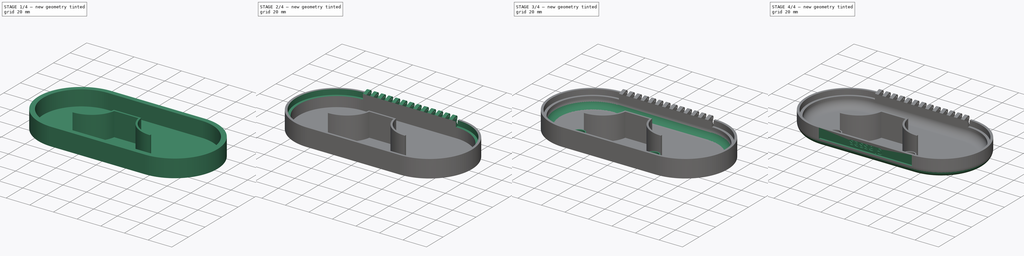
[diagram: build sequence overview — one tinted view per stage of 4, left to right]
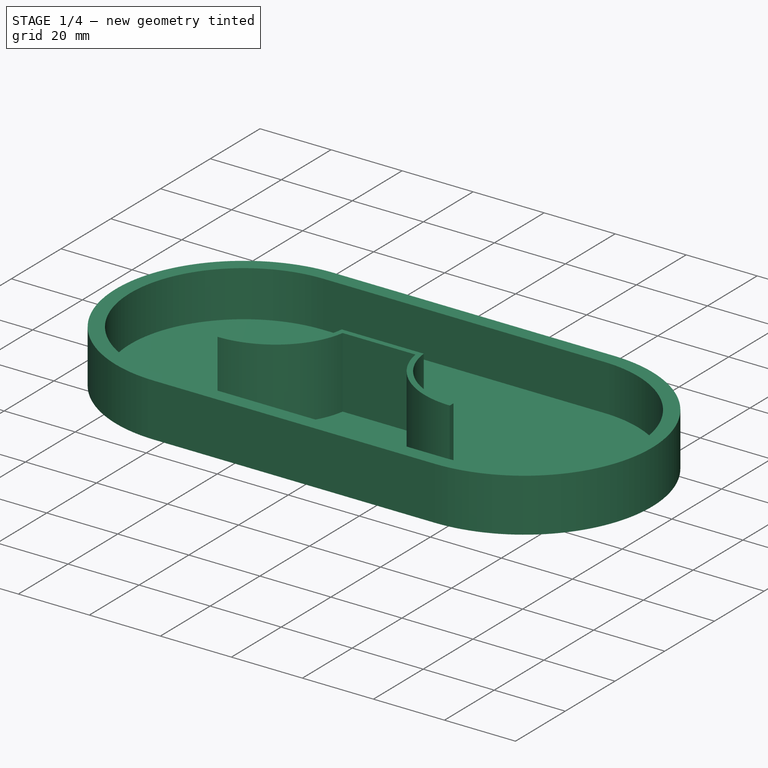
[diagram: stage 1 of 4 — iso view after this stage's code; geometry added in this stage tinted green]
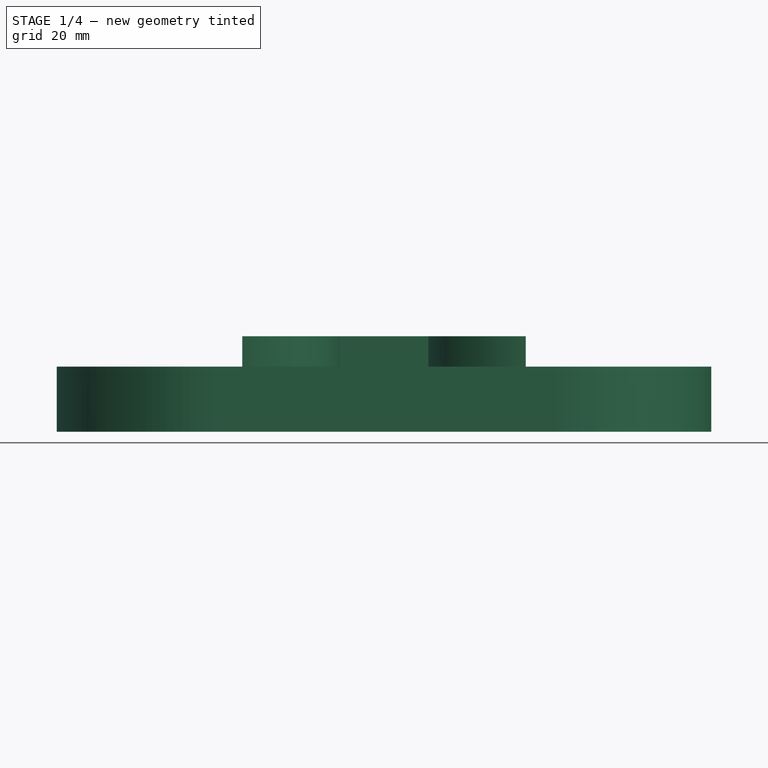
[diagram: stage 1 of 4 — front view after this stage's code; geometry added in this stage tinted green]
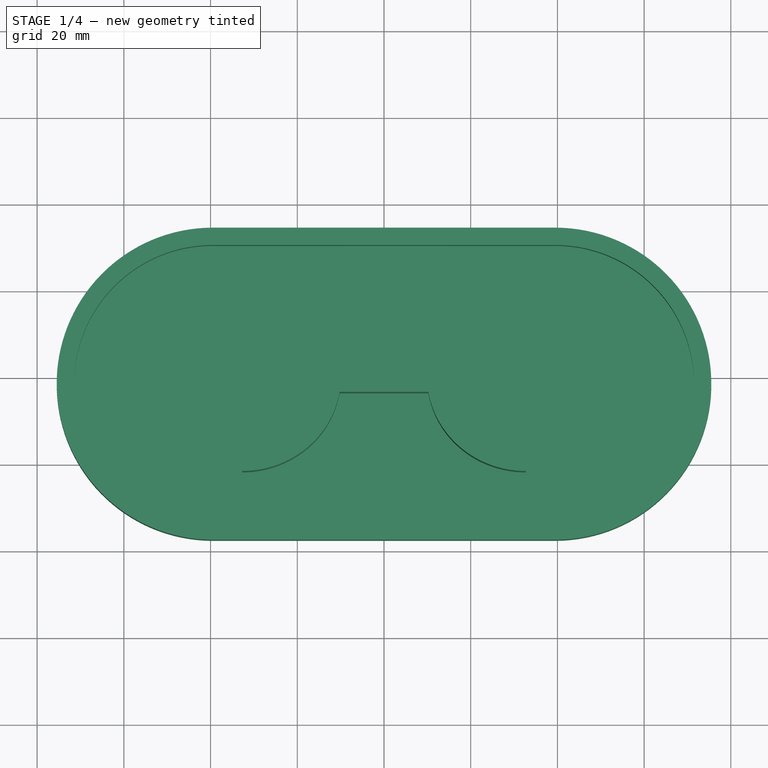
[diagram: stage 1 of 4 — top view after this stage's code; geometry added in this stage tinted green]
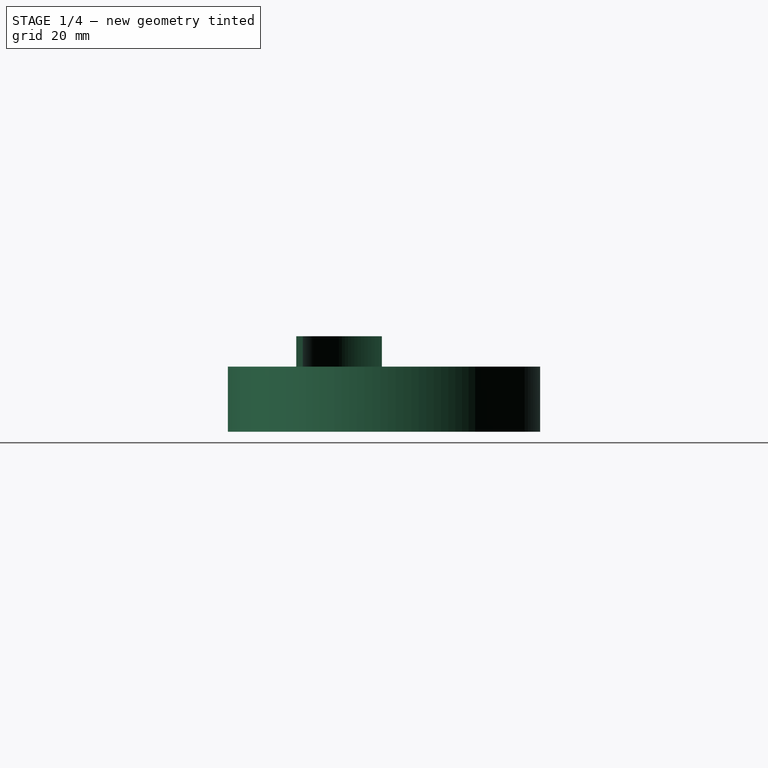
[diagram: stage 1 of 4 — right view after this stage's code; geometry added in this stage tinted green]
FCSTD DOCUMENT  (FreeCAD 1.1R39673 (Git))
Label: case_top
License: All rights reserved
LicenseURL: http://en.wikipedia.org/wiki/All_rights_reserved
objects: Sketcher::SketchObject×12, PartDesign::Pad×4, PartDesign::Pocket×4, PartDesign::AdditivePipe×2, PartDesign::SubtractivePipe×2, PartDesign::Plane×1, PartDesign::Mirrored×1, App::Point×1, Part::Part2DObjectPython×1, PartDesign::Body×1
note: 65 computed .brp shape members not serialized (recipe doc carries the construction recipe); baked Part::Feature solids carry a one-line shape summary decoded from their .brp

FEATURE [Sketcher::SketchObject] Sketch  label="Frame back face"
  ArcFitTolerance = 1e-06
  AttachmentSupport = -> [XY_Plane]
  ExternalTypes = [0]
  FullyConstrained = true
  MakeInternals = false
  MapMode = 5
  sketch-geometry (24):
    g0: Ellipse CenterX=-32.7 CenterY=0 CenterZ=0 NormalX=0 NormalY=0 NormalZ=1 MajorRadius=20 MinorRadius=19 AngleXU=0
    g1: LineSegment [constr] StartX=-12.7 StartY=0 StartZ=0 EndX=-52.7 EndY=0 EndZ=0
    g2: LineSegment [constr] StartX=-32.7 StartY=19 StartZ=0 EndX=-32.7 EndY=-19 EndZ=0
    g3: GeomPoint [constr] X=-26.455 Y=0 Z=0
    g4: GeomPoint [constr] X=-38.945 Y=0 Z=0
    g5: Ellipse CenterX=32.7 CenterY=0 CenterZ=0 NormalX=0 NormalY=0 NormalZ=1 MajorRadius=20 MinorRadius=19 AngleXU=0
    g6: LineSegment [constr] StartX=52.7 StartY=0 StartZ=0 EndX=12.7 EndY=0 EndZ=0
    g7: LineSegment [constr] StartX=32.7 StartY=19 StartZ=0 EndX=32.7 EndY=-19 EndZ=0
    g8: GeomPoint [constr] X=38.945 Y=0 Z=0
    g9: GeomPoint [constr] X=26.455 Y=0 Z=0
    g10: ArcOfEllipse CenterX=-32.7 CenterY=0 CenterZ=0 NormalX=0 NormalY=0 NormalZ=1 MajorRadius=22 MinorRadius=21 AngleXU=0 StartAngle=0.410218 EndAngle=6.59162
    g11: LineSegment [constr] StartX=-10.7 StartY=0 StartZ=0 EndX=-54.7 EndY=0 EndZ=0
    g12: LineSegment [constr] StartX=-32.7 StartY=21 StartZ=0 EndX=-32.7 EndY=-21 EndZ=0
    g13: GeomPoint [constr] X=-26.1426 Y=0 Z=0
    g14: GeomPoint [constr] X=-39.2574 Y=0 Z=0
    g15: ArcOfEllipse CenterX=32.7 CenterY=0 CenterZ=0 NormalX=0 NormalY=0 NormalZ=1 MajorRadius=22 MinorRadius=21 AngleXU=0 StartAngle=2.83315 EndAngle=9.01456
    g16: LineSegment [constr] StartX=54.7 StartY=0 StartZ=0 EndX=10.7 EndY=0 EndZ=0
    g17: LineSegment [constr] StartX=32.7 StartY=21 StartZ=0 EndX=32.7 EndY=-21 EndZ=0
    g18: GeomPoint [constr] X=39.2574 Y=0 Z=0
    g19: GeomPoint [constr] X=26.1426 Y=0 Z=0
    g20: LineSegment StartX=-11.7382 StartY=6.375 StartZ=0 EndX=11.7382 EndY=6.375 EndZ=0
    g21: LineSegment StartX=-12.5253 StartY=8.375 StartZ=0 EndX=12.5253 EndY=8.375 EndZ=0
    g22: Circle CenterX=-32.7 CenterY=0 CenterZ=0 NormalX=0 NormalY=0 NormalZ=1 AngleXU=0 Radius=0.5
    g23: Circle CenterX=32.7 CenterY=0 CenterZ=0 NormalX=0 NormalY=0 NormalZ=1 AngleXU=0 Radius=0.5
  constraints (33):
    c: InternalAlignment(g1-g4 -> g0) x4
    c: PointOnObject(g0,g-1)
    c: Horizontal(g1)
    c: DistanceX(g1,g1) = 40
    c: DistanceY(g2,g2) = 38
    c: InternalAlignment(g6-g9 -> g5) x4
    c: Horizontal(g6)
    c: Equal(g1,g6)
    c: Equal(g7,g2)
    c: Symmetric(g5,g0,g-2)
    c: DistanceX(g0,g5) = 65.4
    c: InternalAlignment(g11-g14 -> g10) x4
    c: Coincident(g10,g0)
    c: Horizontal(g11)
    c: DistanceX(g1,g11) = 2
    c: DistanceY(g12,g2) = 2
    c: InternalAlignment(g16-g19 -> g15) x4
    c: Symmetric(g0,g15,g-2)
    c: Horizontal(g16)
    c: Equal(g16,g11)
    c: Equal(g17,g12)
    c: Horizontal(g10,g15)
    c: Horizontal(g15,g10)
    c: Coincident(g20,g10)
    c: Coincident(g20,g15)
    c: Coincident(g21,g10)
    c: Coincident(g21,g15)
    c: Distance(g20,g21) = 2
    c: Distance(g-1,g20) = 6.375
    c: Coincident(g22,g0)
    c: Diameter(g22) = 1
    c: Equal(g22,g23)
    c: Symmetric(g22,g23,g-2)
FEATURE [Sketcher::SketchObject] Sketch001
  ArcFitTolerance = 1e-06
  AttachmentSupport = -> [XY_Plane]
  ExternalGeometry = -> [Sketch]
  ExternalTypes = [0]
  FullyConstrained = true
  MakeInternals = false
  MapMode = 5
  sketch-geometry (28):
    g0: ArcOfEllipse [constr] CenterX=-32.7 CenterY=0 CenterZ=0 NormalX=0 NormalY=0 NormalZ=1 MajorRadius=21.25 MinorRadius=20.25 AngleXU=0 StartAngle=0.426383 EndAngle=6.18426
    g1: LineSegment [constr] StartX=-11.45 StartY=0 StartZ=0 EndX=-53.95 EndY=0 EndZ=0
    g2: LineSegment [constr] StartX=-32.7 StartY=20.25 StartZ=0 EndX=-32.7 EndY=-20.25 EndZ=0
    g3: GeomPoint [constr] X=-26.258 Y=0 Z=0
    g4: GeomPoint [constr] X=-39.142 Y=0 Z=0
    g5: LineSegment [constr] StartX=-32.7 StartY=0 StartZ=0 EndX=-32.7 EndY=21 EndZ=0
    g6: LineSegment [constr] StartX=-32.7 StartY=0 StartZ=0 EndX=-54.7 EndY=0 EndZ=0
    g7: ArcOfEllipse CenterX=-32.7 CenterY=0 CenterZ=0 NormalX=0 NormalY=0 NormalZ=1 MajorRadius=21.25 MinorRadius=20.25 AngleXU=1.26e-14 StartAngle=4.71239 EndAngle=6.18426
    g8: ArcOfEllipse [constr] CenterX=-32.7 CenterY=0 CenterZ=0 NormalX=0 NormalY=0 NormalZ=1 MajorRadius=22.75 MinorRadius=21.75 AngleXU=0 StartAngle=0.39527 EndAngle=6.12156
    g9: LineSegment [constr] StartX=-9.95 StartY=0 StartZ=0 EndX=-55.45 EndY=0 EndZ=0
    g10: LineSegment [constr] StartX=-32.7 StartY=21.75 StartZ=0 EndX=-32.7 EndY=-21.75 EndZ=0
    g11: GeomPoint [constr] X=-26.0292 Y=0 Z=0
    g12: GeomPoint [constr] X=-39.3708 Y=0 Z=0
    g13: ArcOfEllipse CenterX=-32.7 CenterY=0 CenterZ=0 NormalX=0 NormalY=0 NormalZ=1 MajorRadius=22.75 MinorRadius=21.75 AngleXU=3.14159 StartAngle=1.5708 EndAngle=2.97997
    g14: LineSegment StartX=-32.7 StartY=-21.75 StartZ=0 EndX=-32.7 EndY=-20.25 EndZ=0
    g15: ArcOfEllipse CenterX=32.7 CenterY=0 CenterZ=0 NormalX=0 NormalY=0 NormalZ=1 MajorRadius=22.75 MinorRadius=21.75 AngleXU=-3.14159 StartAngle=0.161622 EndAngle=1.5708
    g16: LineSegment [constr] StartX=9.95 StartY=0 StartZ=0 EndX=55.45 EndY=0 EndZ=0
    g17: LineSegment [constr] StartX=32.7 StartY=-21.75 StartZ=0 EndX=32.7 EndY=21.75 EndZ=0
    g18: GeomPoint [constr] X=26.0292 Y=-8e-16 Z=0
    g19: GeomPoint [constr] X=39.3708 Y=0 Z=0
    g20: ArcOfEllipse CenterX=32.7 CenterY=0 CenterZ=0 NormalX=0 NormalY=0 NormalZ=1 MajorRadius=21.25 MinorRadius=20.25 AngleXU=3.14159 StartAngle=0.0989267 EndAngle=1.5708
    g21: LineSegment [constr] StartX=11.45 StartY=0 StartZ=0 EndX=53.95 EndY=0 EndZ=0
    g22: LineSegment [constr] StartX=32.7 StartY=-20.25 StartZ=0 EndX=32.7 EndY=20.25 EndZ=0
    g23: GeomPoint [constr] X=26.258 Y=8e-16 Z=0
    g24: GeomPoint [constr] X=39.142 Y=0 Z=0
    g25: LineSegment StartX=32.7 StartY=-20.25 StartZ=0 EndX=32.7 EndY=-21.75 EndZ=0
    g26: LineSegment StartX=-11.5539 StartY=-2 StartZ=0 EndX=11.5539 EndY=-2 EndZ=0
    g27: LineSegment StartX=-10.2465 StartY=-3.5 StartZ=0 EndX=10.2465 EndY=-3.5 EndZ=0
  constraints (48):
    c: Coincident(g0,g-3)
    c: InternalAlignment(g1-g4 -> g0) x4
    c: Horizontal(g1)
    c: Coincident(g5,g0)
    c: PointOnObject(g5,g-3)
    c: Vertical(g5)
    c: Coincident(g6,g0)
    c: PointOnObject(g6,g-3)
    c: Horizontal(g6)
    c: Coincident(g7,g0)
    c: Coincident(g7,g0)
    c: Equal(g0,g7)
    c: InternalAlignment(g9-g12 -> g8) x4
    c: Coincident(g8,g0)
    c: Horizontal(g9)
    c: Coincident(g13,g0)
    c: Coincident(g8,g13)
    c: Equal(g8,g13)
    c: PointOnObject(g8,g-5)
    c: PointOnObject(g0,g-5)
    c: Distance(g0,g-1) = 2
    c: Coincident(g14,g13)
    c: Coincident(g14,g7)
    c: PointOnObject(g0,g14)
    c: DistanceY(g8,g0) = 1.5
    c: InternalAlignment(g16-g19 -> g15) x4
    c: Coincident(g15,g-4)
    c: Symmetric(g9,g16,g-2)
    c: Horizontal(g17,g10)
    c: Horizontal(g8,g15)
    c: Horizontal(g13,g15)
    c: InternalAlignment(g21-g24 -> g20) x4
    c: Coincident(g20,g15)
    c: Symmetric(g21,g1,g-2)
    c: Horizontal(g22,g2)
    c: Horizontal(g0,g20)
    c: Horizontal(g20,g7)
    c: Coincident(g25,g20)
    c: Coincident(g25,g15)
    c: Coincident(g26,g0)
    c: Coincident(g26,g20)
    c: Coincident(g27,g8)
    c: Coincident(g27,g15)
    c: Vertical(g14)
    c: Distance(g5,g10) = 0.75
    c: DistanceY(g2,g10) = 1.5
    c: Distance(g9,g6) = 0.75
    c: DistanceX(g9,g1) = 1.5
FEATURE [PartDesign::Pad] Pad  label="Frame holder wall"
  Direction = (0,0,1)
  Length = 20
  Length2 = 4
  Profile = -> Sketch001
  ReferenceAxis = -> Sketch001 [N_Axis]
  Refine = true
  Reversed = true
  Suppressed = false
  Type = 0
FEATURE [Sketcher::SketchObject] Sketch003
  ArcFitTolerance = 1e-06
  AttachmentSupport = -> [Pad]
  ExternalTypes = [0]
  FullyConstrained = true
  MakeInternals = false
  MapMode = 5
  Placement = pos=(0,0,-20) rot=(1,0,0;3.14159rad)
  sketch-geometry (8):
    g0: ArcOfCircle CenterX=-39.5 CenterY=1.5 CenterZ=0 NormalX=0 NormalY=0 NormalZ=1 AngleXU=0 Radius=32 StartAngle=1.5708 EndAngle=4.71239
    g1: ArcOfCircle CenterX=39.5 CenterY=1.5 CenterZ=0 NormalX=0 NormalY=0 NormalZ=1 AngleXU=0 Radius=32 StartAngle=4.71239 EndAngle=7.85398
    g2: LineSegment StartX=-39.5 StartY=33.5 StartZ=0 EndX=39.5 EndY=33.5 EndZ=0
    g3: LineSegment StartX=-39.5 StartY=-30.5 StartZ=0 EndX=39.5 EndY=-30.5 EndZ=0
    g4: ArcOfCircle CenterX=-39.5 CenterY=1.5 CenterZ=0 NormalX=0 NormalY=0 NormalZ=1 AngleXU=0 Radius=36 StartAngle=1.5708 EndAngle=4.71239
    g5: ArcOfCircle CenterX=39.5 CenterY=1.5 CenterZ=0 NormalX=0 NormalY=0 NormalZ=1 AngleXU=0 Radius=36 StartAngle=4.71239 EndAngle=7.85398
    g6: LineSegment StartX=-39.5 StartY=-34.5 StartZ=0 EndX=39.5 EndY=-34.5 EndZ=0
    g7: LineSegment StartX=-39.5 StartY=37.5 StartZ=0 EndX=39.5 EndY=37.5 EndZ=0
  constraints (25):
    c: Vertical(g0,g0)
    c: Vertical(g0,g0)
    c: Symmetric(g1,g0,g-2)
    c: Vertical(g1,g1)
    c: Vertical(g1,g1)
    c: Equal(g1,g0)
    c: Coincident(g2,g0)
    c: Coincident(g2,g1)
    c: Coincident(g3,g0)
    c: Coincident(g3,g1)
    c: DistanceX(g0,g1) = 79
    c: Radius(g0) = 32
    c: Distance(g0,g-1) = 1.5
    c: Coincident(g4,g0)
    c: Vertical(g0,g4)
    c: Vertical(g0,g4)
    c: DistanceY(g0,g4) = 4
    c: Coincident(g5,g1)
    c: Vertical(g5,g1)
    c: Vertical(g1,g5)
    c: Horizontal(g5,g4)
    c: Coincident(g6,g4)
    c: Coincident(g5,g6)
    c: Coincident(g7,g4)
    c: Coincident(g5,g7)
FEATURE [PartDesign::Pad] Pad002  label="Case bottom"
  BaseFeature = -> Pad
  Direction = (0,0,-1)
  Length = 2
  Length2 = 10
  Profile = -> Sketch003 [Edge5,Edge6,Edge7,Edge8]
  ReferenceAxis = -> Sketch003 [N_Axis]
  Refine = true
  Suppressed = false
  Type = 0
FEATURE [PartDesign::Pad] Pad003  label="Case walls"
  BaseFeature = -> Pad002
  Direction = (0,0,-1)
  Length = 13
  Length2 = 10
  Profile = -> Sketch003
  ReferenceAxis = -> Sketch003 [N_Axis]
  Refine = true
  Reversed = true
  Suppressed = false
  Type = 0
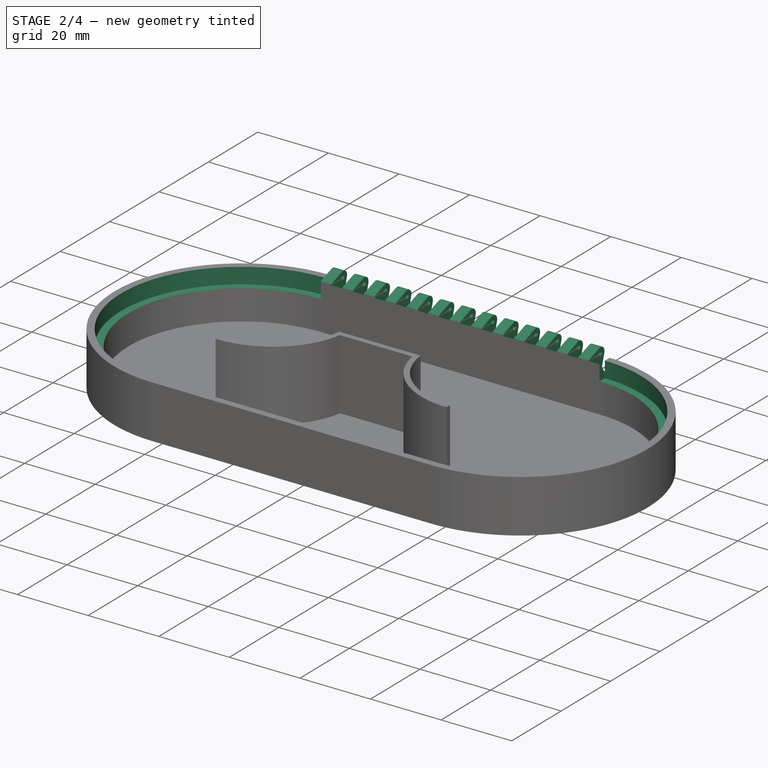
[diagram: stage 2 of 4 — iso view after this stage's code; geometry added in this stage tinted green]
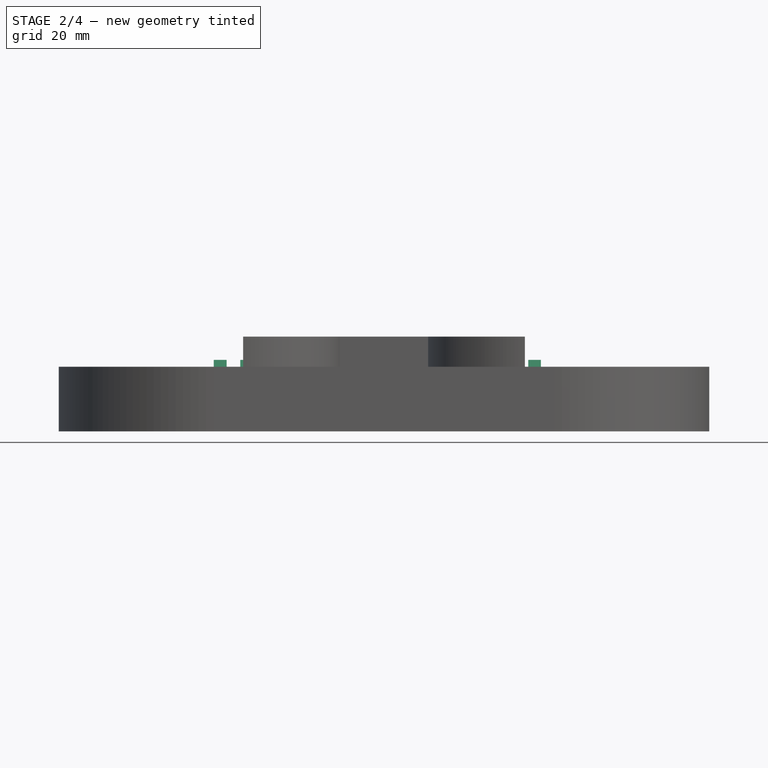
[diagram: stage 2 of 4 — front view after this stage's code; geometry added in this stage tinted green]
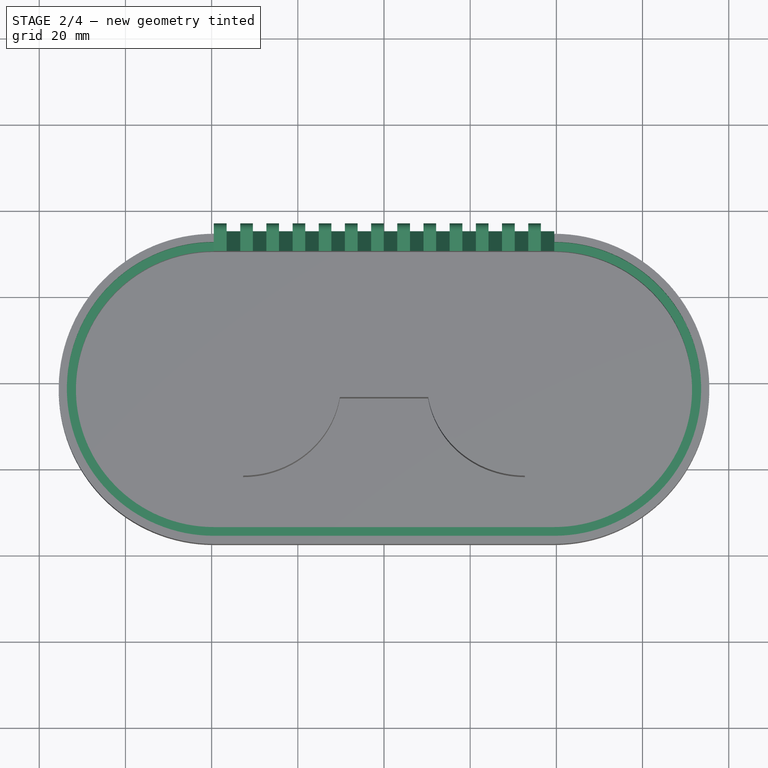
[diagram: stage 2 of 4 — top view after this stage's code; geometry added in this stage tinted green]
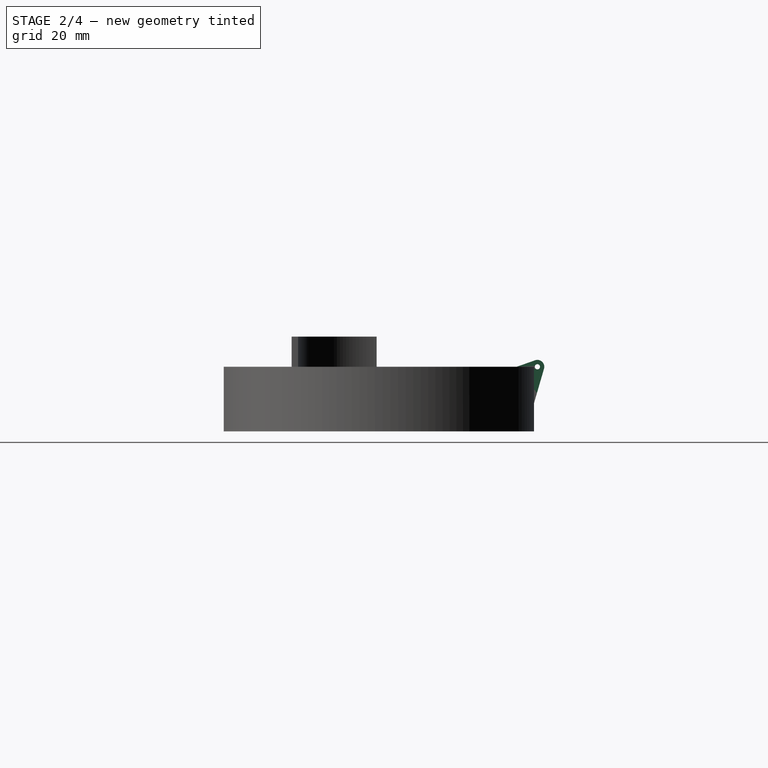
[diagram: stage 2 of 4 — right view after this stage's code; geometry added in this stage tinted green]
FEATURE [Sketcher::SketchObject] Sketch004
  ArcFitTolerance = 1e-06
  AttachmentSupport = -> [YZ_Plane]
  ExternalTypes = [0]
  FullyConstrained = true
  MakeInternals = false
  MapMode = 5
  Placement = pos=(0,0,0) rot=(0.57735,0.57735,0.57735;2.0944rad)
  sketch-geometry (6):
    g0: Circle CenterX=35.3 CenterY=-7 CenterZ=0 NormalX=0 NormalY=0 NormalZ=1 AngleXU=0 Radius=0.6
    g1: ArcOfCircle CenterX=35.3 CenterY=-7 CenterZ=0 NormalX=0 NormalY=0 NormalZ=1 AngleXU=0 Radius=1.6 StartAngle=6.00082 EndAngle=8.19382
    g2: LineSegment StartX=30.5 StartY=-7 StartZ=0 EndX=34.7667 EndY=-5.49151 EndZ=0
    g3: LineSegment StartX=36.8366 StartY=-7.4458 StartZ=0 EndX=34.5 EndY=-15.5 EndZ=0
    g4: LineSegment StartX=30.5 StartY=-7 StartZ=0 EndX=34.5 EndY=-15.5 EndZ=0
    g5: LineSegment [constr] StartX=34.5 StartY=-7 StartZ=0 EndX=34.7 EndY=-7 EndZ=0
  constraints (14):
    c: Diameter(g0) = 1.2
    c: Horizontal(g0,g-4)
    c: Coincident(g1,g0)
    c: Diameter(g1) = 3.2
    c: Coincident(g2,g-3)
    c: Coincident(g4,g2)
    c: Tangent(g1,g2) = 1.5708
    c: Tangent(g1,g3) = 1.5708
    c: Coincident(g-4,g5)
    c: PointOnObject(g5,g0)
    c: Horizontal(g5)
    c: DistanceX(g5,g5) = 0.2
    c: Coincident(g3,g4)
    c: Coincident(g-5,g3)
FEATURE [PartDesign::AdditivePipe] AdditivePipe  label="Hinge base"
  AuxilleryCurvelinear = true
  AuxillerySpineTangent = false
  BaseFeature = -> Pad003
  Binormal = (0,0,0)
  Mode = 0
  Profile = -> Sketch004
  Refine = true
  Spine = -> Pad003 [Edge33]
  SpineTangent = false
  Suppressed = false
  Transformation = 0
  Transition = 0
FEATURE [Sketcher::SketchObject] Sketch005  label="Hinge notches cutting path"
  ArcFitTolerance = 1e-06
  AttachmentSupport = -> [YZ_Plane]
  ExternalGeometry = -> [Sketch004]
  ExternalTypes = [0]
  FullyConstrained = true
  MakeInternals = false
  MapMode = 5
  Placement = pos=(0,0,0) rot=(0.57735,0.57735,0.57735;2.0944rad)
  sketch-geometry (5):
    g0: LineSegment [constr] StartX=35.3 StartY=-7 StartZ=0 EndX=35.3 EndY=-15.5 EndZ=0
    g1: LineSegment [constr] StartX=33.7634 StartY=-7.4458 StartZ=0 EndX=36.1 EndY=-15.5 EndZ=0
    g2: LineSegment StartX=29.1405 StartY=-5.49151 StartZ=0 EndX=37.1045 EndY=-15.5 EndZ=0
    g3: LineSegment [constr] StartX=35.1959 StartY=-13.1014 StartZ=0 EndX=33.5551 EndY=-7.4458 EndZ=0
    g4: LineSegment [constr] StartX=30.5 StartY=-7 StartZ=0 EndX=30.5 EndY=-7.2 EndZ=0
  constraints (16):
    c: Coincident(g0,g-3)
    c: Vertical(g0)
    c: Horizontal(g-4,g0)
    c: Symmetric(g1,g-4,g0)
    c: Symmetric(g1,g-4,g0)
    c: PointOnObject(g3,g-4)
    c: Horizontal(g3,g1)
    c: Parallel(g3,g1)
    c: Distance(g1,g3) = 0.2
    c: PointOnObject(g3,g2)
    c: Coincident(g4,g-5)
    c: PointOnObject(g4,g2)
    c: Vertical(g4)
    c: DistanceY(g4,g4) = 0.2
    c: Horizontal(g-5,g2)
    c: Horizontal(g0,g2)
FEATURE [PartDesign::Plane] DatumPlane  label="Hinge notches cutting profile plane"
  AttachmentSupport = -> [Sketch005]
  Length = 174.221
  MapMode = 7
  Placement = pos=(0,29.1405,-5.49151) rot=(1,0,0;0.67213rad)
  ResizeMode = 0
  Width = 112.576
FEATURE [Sketcher::SketchObject] Sketch006
  ArcFitTolerance = 1e-06
  AttachmentSupport = -> [DatumPlane]
  ExternalGeometry = -> [Sketch003]
  ExternalTypes = [0]
  FullyConstrained = true
  MakeInternals = false
  MapMode = 5
  Placement = pos=(0,29.1405,-5.49151) rot=(1,0,0;0.67213rad)
  sketch-geometry (104):
    g0: LineSegment [constr] StartX=-39.5 StartY=0 StartZ=0 EndX=-36.4615 EndY=0 EndZ=0
    g1: LineSegment [constr] StartX=-36.4615 StartY=0 StartZ=0 EndX=-33.4231 EndY=0 EndZ=0
    g2: LineSegment [constr] StartX=-33.4231 StartY=0 StartZ=0 EndX=-30.3846 EndY=0 EndZ=0
    g3: LineSegment [constr] StartX=-30.3846 StartY=0 StartZ=0 EndX=-27.3462 EndY=0 EndZ=0
    g4: LineSegment [constr] StartX=-27.3462 StartY=0 StartZ=0 EndX=-24.3077 EndY=0 EndZ=0
    g5: LineSegment [constr] StartX=-24.3077 StartY=0 StartZ=0 EndX=-21.2692 EndY=0 EndZ=0
    g6: LineSegment [constr] StartX=-21.2692 StartY=0 StartZ=0 EndX=-18.2308 EndY=0 EndZ=0
    g7: LineSegment [constr] StartX=-18.2308 StartY=0 StartZ=0 EndX=-15.1923 EndY=0 EndZ=0
    g8: LineSegment [constr] StartX=-15.1923 StartY=0 StartZ=0 EndX=-12.1538 EndY=0 EndZ=0
    g9: LineSegment [constr] StartX=-12.1538 StartY=0 StartZ=0 EndX=-9.11538 EndY=0 EndZ=0
    g10: LineSegment [constr] StartX=-9.11538 StartY=0 StartZ=0 EndX=-6.07692 EndY=0 EndZ=0
    g11: LineSegment [constr] StartX=-6.07692 StartY=0 StartZ=0 EndX=-3.03846 EndY=0 EndZ=0
    g12: LineSegment [constr] StartX=-3.03846 StartY=0 StartZ=0 EndX=-4e-16 EndY=0 EndZ=0
    g13: LineSegment [constr] StartX=-4e-16 StartY=0 StartZ=0 EndX=3.03846 EndY=0 EndZ=0
    g14: LineSegment [constr] StartX=3.03846 StartY=0 StartZ=0 EndX=6.07692 EndY=0 EndZ=0
    g15: LineSegment [constr] StartX=6.07692 StartY=0 StartZ=0 EndX=9.11538 EndY=0 EndZ=0
    g16: LineSegment [constr] StartX=9.11538 StartY=0 StartZ=0 EndX=12.1538 EndY=0 EndZ=0
    g17: LineSegment [constr] StartX=12.1538 StartY=0 StartZ=0 EndX=15.1923 EndY=0 EndZ=0
    g18: LineSegment [constr] StartX=15.1923 StartY=0 StartZ=0 EndX=18.2308 EndY=0 EndZ=0
    g19: LineSegment [constr] StartX=18.2308 StartY=0 StartZ=0 EndX=21.2692 EndY=0 EndZ=0
    g20: LineSegment [constr] StartX=21.2692 StartY=0 StartZ=0 EndX=24.3077 EndY=0 EndZ=0
    g21: LineSegment [constr] StartX=24.3077 StartY=0 StartZ=0 EndX=27.3462 EndY=0 EndZ=0
    g22: LineSegment [constr] StartX=27.3462 StartY=0 StartZ=0 EndX=30.3846 EndY=0 EndZ=0
    g23: LineSegment [constr] StartX=30.3846 StartY=0 StartZ=0 EndX=33.4231 EndY=0 EndZ=0
    g24: LineSegment [constr] StartX=33.4231 StartY=0 StartZ=0 EndX=36.4615 EndY=0 EndZ=0
    g25: LineSegment [constr] StartX=36.4615 StartY=0 StartZ=0 EndX=39.5 EndY=0 EndZ=0
    g26: LineSegment StartX=-36.5115 StartY=0 StartZ=0 EndX=-36.5115 EndY=10 EndZ=0
    g27: LineSegment StartX=-36.5115 StartY=10 StartZ=0 EndX=-36.4615 EndY=10 EndZ=0
    g28: LineSegment StartX=-36.4615 StartY=10 StartZ=0 EndX=-33.4231 EndY=10 EndZ=0
    g29: LineSegment StartX=-33.4231 StartY=10 StartZ=0 EndX=-33.3731 EndY=10 EndZ=0
    g30: LineSegment StartX=-33.3731 StartY=10 StartZ=0 EndX=-33.3731 EndY=0 EndZ=0
    g31: LineSegment StartX=-36.5115 StartY=0 StartZ=0 EndX=-33.3731 EndY=0 EndZ=0
    g32: LineSegment StartX=-30.4346 StartY=0 StartZ=0 EndX=-30.4346 EndY=10 EndZ=0
    g33: LineSegment StartX=-30.4346 StartY=10 StartZ=0 EndX=-30.3846 EndY=10 EndZ=0
    g34: LineSegment StartX=-30.3846 StartY=10 StartZ=0 EndX=-27.3462 EndY=10 EndZ=0
    g35: LineSegment StartX=-27.3462 StartY=10 StartZ=0 EndX=-27.2962 EndY=10 EndZ=0
    g36: LineSegment StartX=-27.2962 StartY=10 StartZ=0 EndX=-27.2962 EndY=0 EndZ=0
    g37: LineSegment StartX=-27.2962 StartY=0 StartZ=0 EndX=-30.4346 EndY=0 EndZ=0
    g38: LineSegment StartX=-24.3577 StartY=0 StartZ=0 EndX=-24.3577 EndY=10 EndZ=0
    g39: LineSegment StartX=-24.3577 StartY=10 StartZ=0 EndX=-24.3077 EndY=10 EndZ=0
    g40: LineSegment StartX=-24.3077 StartY=10 StartZ=0 EndX=-21.2692 EndY=10 EndZ=0
    g41: LineSegment StartX=-21.2692 StartY=10 StartZ=0 EndX=-21.2192 EndY=10 EndZ=0
    g42: LineSegment StartX=-21.2192 StartY=10 StartZ=0 EndX=-21.2192 EndY=0 EndZ=0
    g43: LineSegment StartX=-21.2192 StartY=0 StartZ=0 EndX=-24.3577 EndY=0 EndZ=0
    g44: LineSegment StartX=-18.2808 StartY=0 StartZ=0 EndX=-18.2808 EndY=10 EndZ=0
    g45: LineSegment StartX=-18.2808 StartY=10 StartZ=0 EndX=-18.2308 EndY=10 EndZ=0
    g46: LineSegment StartX=-18.2308 StartY=10 StartZ=0 EndX=-15.1923 EndY=10 EndZ=0
    g47: LineSegment StartX=-15.1923 StartY=10 StartZ=0 EndX=-15.1423 EndY=10 EndZ=0
    g48: LineSegment StartX=-15.1423 StartY=10 StartZ=0 EndX=-15.1423 EndY=0 EndZ=0
    g49: LineSegment StartX=-15.1423 StartY=0 StartZ=0 EndX=-18.2808 EndY=0 EndZ=0
    g50: LineSegment StartX=-12.2038 StartY=0 StartZ=0 EndX=-12.2038 EndY=10 EndZ=0
    g51: LineSegment StartX=-12.2038 StartY=10 StartZ=0 EndX=-12.1538 EndY=10 EndZ=0
    g52: LineSegment StartX=-12.1538 StartY=10 StartZ=0 EndX=-9.11538 EndY=10 EndZ=0
    g53: LineSegment StartX=-9.11538 StartY=10 StartZ=0 EndX=-9.06538 EndY=10 EndZ=0
    g54: LineSegment StartX=-9.06538 StartY=10 StartZ=0 EndX=-9.06538 EndY=0 EndZ=0
    g55: LineSegment StartX=-9.06538 StartY=0 StartZ=0 EndX=-12.2038 EndY=0 EndZ=0
    g56: LineSegment StartX=-6.12692 StartY=0 StartZ=0 EndX=-6.12692 EndY=10 EndZ=0
    g57: LineSegment StartX=-6.12692 StartY=10 StartZ=0 EndX=-6.07692 EndY=10 EndZ=0
    g58: LineSegment StartX=-6.07692 StartY=10 StartZ=0 EndX=-3.03846 EndY=10 EndZ=0
    g59: LineSegment StartX=-3.03846 StartY=10 StartZ=0 EndX=-2.98846 EndY=10 EndZ=0
    g60: LineSegment StartX=-2.98846 StartY=10 StartZ=0 EndX=-2.98846 EndY=0 EndZ=0
    g61: LineSegment StartX=-2.98846 StartY=0 StartZ=0 EndX=-6.12692 EndY=0 EndZ=0
    g62: LineSegment StartX=-0.05 StartY=0 StartZ=0 EndX=-0.05 EndY=10 EndZ=0
    g63: LineSegment StartX=-0.05 StartY=10 StartZ=0 EndX=-4e-16 EndY=10 EndZ=0
    g64: LineSegment StartX=-4e-16 StartY=10 StartZ=0 EndX=3.03846 EndY=10 EndZ=0
    g65: LineSegment StartX=3.03846 StartY=10 StartZ=0 EndX=3.08846 EndY=10 EndZ=0
    g66: LineSegment StartX=3.08846 StartY=10 StartZ=0 EndX=3.08846 EndY=0 EndZ=0
    g67: LineSegment StartX=3.08846 StartY=0 StartZ=0 EndX=-0.05 EndY=0 EndZ=0
    g68: LineSegment StartX=6.02692 StartY=0 StartZ=0 EndX=6.02692 EndY=10 EndZ=0
    g69: LineSegment StartX=6.02692 StartY=10 StartZ=0 EndX=6.07692 EndY=10 EndZ=0
    g70: LineSegment StartX=6.07692 StartY=10 StartZ=0 EndX=9.11538 EndY=10 EndZ=0
    g71: LineSegment StartX=9.11538 StartY=10 StartZ=0 EndX=9.16538 EndY=10 EndZ=0
    g72: LineSegment StartX=9.16538 StartY=10 StartZ=0 EndX=9.16538 EndY=0 EndZ=0
    g73: LineSegment StartX=9.16538 StartY=0 StartZ=0 EndX=6.02692 EndY=0 EndZ=0
    g74: LineSegment StartX=12.1038 StartY=0 StartZ=0 EndX=12.1038 EndY=10 EndZ=0
    g75: LineSegment StartX=12.1038 StartY=10 StartZ=0 EndX=12.1538 EndY=10 EndZ=0
    g76: LineSegment StartX=12.1538 StartY=10 StartZ=0 EndX=15.1923 EndY=10 EndZ=0
    g77: LineSegment StartX=15.1923 StartY=10 StartZ=0 EndX=15.2423 EndY=10 EndZ=0
    g78: LineSegment StartX=15.2423 StartY=10 StartZ=0 EndX=15.2423 EndY=0 EndZ=0
    g79: LineSegment StartX=15.2423 StartY=0 StartZ=0 EndX=12.1038 EndY=0 EndZ=0
    g80: LineSegment StartX=18.1808 StartY=0 StartZ=0 EndX=18.1808 EndY=10 EndZ=0
    g81: LineSegment StartX=18.1808 StartY=10 StartZ=0 EndX=18.2308 EndY=10 EndZ=0
    g82: LineSegment StartX=18.2308 StartY=10 StartZ=0 EndX=21.2692 EndY=10 EndZ=0
    g83: LineSegment StartX=21.2692 StartY=10 StartZ=0 EndX=21.3192 EndY=10 EndZ=0
    g84: LineSegment StartX=21.3192 StartY=10 StartZ=0 EndX=21.3192 EndY=0 EndZ=0
    g85: LineSegment StartX=21.3192 StartY=0 StartZ=0 EndX=18.1808 EndY=0 EndZ=0
    g86: LineSegment StartX=24.2577 StartY=0 StartZ=0 EndX=24.2577 EndY=10 EndZ=0
    g87: LineSegment StartX=24.2577 StartY=10 StartZ=0 EndX=24.3077 EndY=10 EndZ=0
    g88: LineSegment StartX=24.3077 StartY=10 StartZ=0 EndX=27.3462 EndY=10 EndZ=0
    g89: LineSegment StartX=27.3462 StartY=10 StartZ=0 EndX=27.3962 EndY=10 EndZ=0
    g90: LineSegment StartX=27.3962 StartY=10 StartZ=0 EndX=27.3962 EndY=0 EndZ=0
    g91: LineSegment StartX=27.3962 StartY=0 StartZ=0 EndX=24.2577 EndY=0 EndZ=0
    g92: LineSegment StartX=30.3346 StartY=0 StartZ=0 EndX=30.3346 EndY=10 EndZ=0
    g93: LineSegment StartX=30.3346 StartY=10 StartZ=0 EndX=30.3846 EndY=10 EndZ=0
    g94: LineSegment StartX=30.3846 StartY=10 StartZ=0 EndX=33.4231 EndY=10 EndZ=0
    g95: LineSegment StartX=33.4231 StartY=10 StartZ=0 EndX=33.4731 EndY=10 EndZ=0
    g96: LineSegment StartX=33.4731 StartY=10 StartZ=0 EndX=33.4731 EndY=0 EndZ=0
    g97: LineSegment StartX=33.4731 StartY=0 StartZ=0 EndX=30.3346 EndY=0 EndZ=0
    g98: LineSegment StartX=36.4115 StartY=0 StartZ=0 EndX=36.4115 EndY=10 EndZ=0
    g99: LineSegment StartX=36.4115 StartY=10 StartZ=0 EndX=36.4615 EndY=10 EndZ=0
    g100: LineSegment StartX=36.4615 StartY=10 StartZ=0 EndX=39.5 EndY=10 EndZ=0
    g101: LineSegment StartX=39.5 StartY=10 StartZ=0 EndX=39.55 EndY=10 EndZ=0
    g102: LineSegment StartX=39.55 StartY=10 StartZ=0 EndX=39.55 EndY=0 EndZ=0
    g103: LineSegment StartX=39.55 StartY=0 StartZ=0 EndX=36.4115 EndY=0 EndZ=0
  constraints (315):
    c: Horizontal(g0)
    c: Coincident(g0,g1)
    c: Horizontal(g1)
    c: Coincident(g1,g2)
    c: Horizontal(g2)
    c: Coincident(g2,g3)
    c: Horizontal(g3)
    c: Coincident(g3,g4)
    c: Horizontal(g4)
    c: Coincident(g4,g5)
    c: Horizontal(g5)
    c: Coincident(g5,g6)
    c: Horizontal(g6)
    c: Coincident(g6,g7)
    c: Horizontal(g7)
    c: Coincident(g7,g8)
    c: Horizontal(g8)
    c: Coincident(g8,g9)
    c: Horizontal(g9)
    c: Coincident(g9,g10)
    c: Horizontal(g10)
    c: Coincident(g10,g11)
    c: Horizontal(g11)
    c: Coincident(g11,g12)
    c: Horizontal(g12)
    c: Coincident(g12,g13)
    c: Horizontal(g13)
    c: Coincident(g13,g14)
    c: Horizontal(g14)
    c: Coincident(g14,g15)
    c: Horizontal(g15)
    c: Coincident(g15,g16)
    c: Horizontal(g16)
    c: Coincident(g16,g17)
    c: Horizontal(g17)
    c: Coincident(g17,g18)
    c: Horizontal(g18)
    c: Coincident(g18,g19)
    c: Horizontal(g19)
    c: Coincident(g19,g20)
    c: Horizontal(g20)
    c: Coincident(g20,g21)
    c: Horizontal(g21)
    c: Coincident(g21,g22)
    c: Horizontal(g22)
    c: Coincident(g22,g23)
    c: Horizontal(g23)
    c: Coincident(g23,g24)
    c: Horizontal(g24)
    c: Coincident(g24,g25)
    c: Horizontal(g25)
    c: Equal(g0,g1)
    c: Equal(g1,g2)
    c: Equal(g2,g3)
    c: Equal(g3,g4)
    c: Equal(g4,g5)
    c: Equal(g5,g6)
    c: Equal(g6,g7)
    c: Equal(g7,g8)
    c: Equal(g8,g9)
    c: Equal(g9,g10)
    c: Equal(g10,g11)
    c: Equal(g11,g12)
    c: Equal(g12,g13)
    c: Equal(g13,g14)
    c: Equal(g14,g15)
    c: Equal(g15,g16)
    c: Equal(g16,g17)
    c: Equal(g17,g18)
    c: Equal(g18,g19)
    c: Equal(g19,g20)
    c: Equal(g20,g21)
    c: Equal(g21,g22)
    c: Equal(g22,g23)
    c: Equal(g23,g24)
    c: Equal(g24,g25)
    c: DistanceX(g0,g0) = 3.03846
    c: PointOnObject(g0,g-1)
    c: PointOnObject(g26,g0)
    c: Vertical(g26)
    c: Coincident(g26,g27)
    c: Coincident(g27,g28)
    c: Horizontal(g28)
    c: Coincident(g28,g29)
    c: Coincident(g29,g30)
    c: PointOnObject(g30,g2)
    c: Vertical(g30)
    c: Horizontal(g27)
    c: Horizontal(g29)
    c: Vertical(g27,g0)
    c: Vertical(g28,g1)
    c: Coincident(g31,g26)
    c: Coincident(g31,g30)
    c: Equal(g27,g29)
    c: DistanceX(g27,g27) = 0.05
    c: PointOnObject(g32,g2)
    c: Vertical(g32)
    c: Coincident(g32,g33)
    c: Coincident(g33,g34)
    c: Horizontal(g34)
    c: Coincident(g34,g35)
    c: Horizontal(g35)
    c: Coincident(g35,g36)
    c: PointOnObject(g36,g4)
    c: Vertical(g36)
    c: Coincident(g36,g37)
    c: Coincident(g37,g32)
    c: Horizontal(g33)
    c: Equal(g27,g33)
    c: Equal(g33,g35)
    c: Vertical(g3,g34)
    c: Vertical(g33,g2)
    c: PointOnObject(g38,g4)
    c: Vertical(g38)
    c: Coincident(g38,g39)
    c: Coincident(g39,g40)
    c: Horizontal(g40)
    c: Coincident(g40,g41)
    c: Coincident(g41,g42)
    c: PointOnObject(g42,g6)
    c: Vertical(g42)
    c: Coincident(g42,g43)
    c: Coincident(g43,g38)
    c: Horizontal(g39)
    c: Horizontal(g41)
    c: Vertical(g39,g4)
    c: Vertical(g40,g5)
    c: Equal(g27,g39)
    c: Equal(g39,g41)
    c: PointOnObject(g44,g6)
    c: Vertical(g44)
    c: Coincident(g44,g45)
    c: Horizontal(g45)
    c: Coincident(g45,g46)
    c: Horizontal(g46)
    c: Coincident(g46,g47)
    c: Horizontal(g47)
    c: Coincident(g47,g48)
    c: PointOnObject(g48,g8)
    c: Vertical(g48)
    c: Coincident(g48,g49)
    c: Coincident(g49,g44)
    c: Vertical(g45,g6)
    c: Vertical(g46,g7)
    c: Equal(g45,g47)
    c: Equal(g47,g27)
    c: PointOnObject(g50,g8)
    c: Vertical(g50)
    c: Coincident(g50,g51)
    c: Horizontal(g51)
    c: Coincident(g51,g52)
    c: Horizontal(g52)
    c: Coincident(g52,g53)
    c: Horizontal(g53)
    c: Coincident(g53,g54)
    c: PointOnObject(g54,g10)
    c: Vertical(g54)
    c: Coincident(g54,g55)
    c: Coincident(g55,g50)
    c: Vertical(g51,g8)
    c: Vertical(g52,g9)
    c: Equal(g51,g53)
    c: Equal(g53,g27)
    c: PointOnObject(g56,g10)
    c: Vertical(g56)
    c: Coincident(g56,g57)
    c: Horizontal(g57)
    c: Coincident(g57,g58)
    c: Horizontal(g58)
    c: Coincident(g58,g59)
    c: Horizontal(g59)
    c: Coincident(g59,g60)
    c: PointOnObject(g60,g12)
    c: Vertical(g60)
    c: Coincident(g60,g61)
    c: Coincident(g61,g56)
    c: Vertical(g57,g10)
    c: Vertical(g58,g11)
    c: Equal(g57,g59)
    c: Equal(g59,g27)
    c: PointOnObject(g62,g12)
    c: Vertical(g62)
    c: Coincident(g62,g63)
    c: Horizontal(g63)
    c: Coincident(g63,g64)
    c: Horizontal(g64)
    c: Coincident(g64,g65)
    c: Horizontal(g65)
    c: Coincident(g65,g66)
    c: PointOnObject(g66,g14)
    c: Vertical(g66)
    c: Coincident(g66,g67)
    c: Coincident(g67,g62)
    c: Vertical(g63,g12)
    c: Vertical(g64,g13)
    c: Equal(g63,g65)
    c: Equal(g65,g27)
    c: PointOnObject(g68,g14)
    c: Vertical(g68)
    c: Coincident(g68,g69)
    c: Horizontal(g69)
    c: Coincident(g69,g70)
    c: Horizontal(g70)
    c: Coincident(g70,g71)
    c: Horizontal(g71)
    c: Coincident(g71,g72)
    c: PointOnObject(g72,g16)
    c: Vertical(g72)
    c: Coincident(g72,g73)
    c: Coincident(g73,g68)
    c: Vertical(g69,g14)
    c: Vertical(g70,g15)
    c: Equal(g69,g71)
    c: Equal(g71,g27)
    c: PointOnObject(g74,g16)
    c: Vertical(g74)
    c: Coincident(g74,g75)
    c: Horizontal(g75)
    c: Coincident(g75,g76)
    c: Horizontal(g76)
    c: Coincident(g76,g77)
    c: Horizontal(g77)
    c: Coincident(g77,g78)
    c: PointOnObject(g78,g18)
    c: Vertical(g78)
    c: Coincident(g78,g79)
    c: Coincident(g79,g74)
    c: Vertical(g16,g75)
    c: Vertical(g17,g76)
    c: Equal(g75,g77)
    c: Equal(g77,g27)
    c: PointOnObject(g80,g18)
    c: Vertical(g80)
    c: Coincident(g80,g81)
    c: Horizontal(g81)
    c: Coincident(g81,g82)
    c: Horizontal(g82)
    c: Coincident(g82,g83)
    c: Horizontal(g83)
    c: Coincident(g83,g84)
    c: PointOnObject(g84,g20)
    c: Vertical(g84)
    c: Coincident(g84,g85)
    c: PointOnObject(g85,g80)
    c: Horizontal(g85)
    c: Vertical(g18,g81)
    c: Vertical(g82,g19)
    c: Equal(g83,g81)
    c: Equal(g81,g27)
    c: PointOnObject(g86,g20)
    c: Vertical(g86)
    c: Coincident(g86,g87)
    c: Horizontal(g87)
    c: Coincident(g87,g88)
    c: Horizontal(g88)
    c: Coincident(g88,g89)
    c: Horizontal(g89)
    c: Coincident(g89,g90)
    c: PointOnObject(g90,g22)
    c: Vertical(g90)
    c: Coincident(g90,g91)
    c: Coincident(g91,g86)
    c: Vertical(g20,g87)
    c: Vertical(g88,g21)
    c: Equal(g89,g87)
    c: Equal(g87,g27)
    c: PointOnObject(g92,g22)
    c: Vertical(g92)
    c: Coincident(g92,g93)
    c: Horizontal(g93)
    c: Coincident(g93,g94)
    c: Horizontal(g94)
    c: Coincident(g94,g95)
    c: Horizontal(g95)
    c: Coincident(g95,g96)
    c: PointOnObject(g96,g24)
    c: Vertical(g96)
    c: Coincident(g96,g97)
    c: Coincident(g97,g92)
    c: Vertical(g93,g22)
    c: Vertical(g94,g23)
    c: Equal(g95,g93)
    c: Equal(g93,g27)
    c: PointOnObject(g98,g24)
    c: Vertical(g98)
    c: Coincident(g98,g99)
    c: Horizontal(g99)
    c: Coincident(g99,g100)
    c: Horizontal(g100)
    c: Coincident(g100,g101)
    c: Horizontal(g101)
    c: Coincident(g101,g102)
    c: PointOnObject(g102,g-1)
    c: Vertical(g102)
    c: Coincident(g102,g103)
    c: Coincident(g98,g103)
    c: Equal(g99,g101)
    c: Equal(g101,g27)
    c: Vertical(g99,g24)
    c: Vertical(g100,g25)
    c: Vertical(g25,g-3)
    c: PointOnObject(g32,g28)
    c: PointOnObject(g38,g28)
    c: PointOnObject(g44,g28)
    c: PointOnObject(g50,g28)
    c: DistanceY(g26,g26) = 10
    c: PointOnObject(g56,g28)
    c: PointOnObject(g62,g28)
    c: PointOnObject(g68,g28)
    c: PointOnObject(g74,g28)
    c: PointOnObject(g80,g28)
    c: PointOnObject(g86,g28)
    c: PointOnObject(g92,g28)
    c: PointOnObject(g98,g28)
    c: Vertical(g-3,g0)
FEATURE [PartDesign::Pocket] Pocket  label="Hinge notches"
  BaseFeature = -> AdditivePipe
  Direction = (0,0.622654,-0.782497)
  Length = 5
  Length2 = 5
  Profile = -> Sketch006
  ReferenceAxis = -> Sketch006 [N_Axis]
  Refine = true
  Suppressed = false
  Type = 1
FEATURE [Sketcher::SketchObject] Sketch007
  ArcFitTolerance = 1e-06
  AttachmentSupport = -> [Pocket]
  ExternalGeometry = -> [Sketch003]
  ExternalTypes = [0]
  FullyConstrained = true
  MakeInternals = false
  MapMode = 5
  Placement = pos=(0,0,-7) rot=(0,0,1;0rad)
  sketch-geometry (10):
    g0: LineSegment [constr] StartX=-39.5 StartY=34.5 StartZ=0 EndX=-39.5 EndY=32.5 EndZ=0
    g1: LineSegment [constr] StartX=-39.5 StartY=30.5 StartZ=0 EndX=-39.5 EndY=32.5 EndZ=0
    g2: ArcOfCircle CenterX=-39.5 CenterY=-1.5 CenterZ=0 NormalX=0 NormalY=0 NormalZ=1 AngleXU=0 Radius=34.1 StartAngle=1.5708 EndAngle=4.71239
    g3: ArcOfCircle CenterX=39.5 CenterY=-1.5 CenterZ=0 NormalX=0 NormalY=0 NormalZ=1 AngleXU=0 Radius=34.1 StartAngle=4.71239 EndAngle=7.85398
    g4: LineSegment StartX=-39.5 StartY=32.6 StartZ=0 EndX=-39.5 EndY=30.5 EndZ=0
    g5: ArcOfCircle CenterX=-39.5 CenterY=-1.5 CenterZ=0 NormalX=0 NormalY=0 NormalZ=1 AngleXU=0 Radius=32 StartAngle=1.5708 EndAngle=4.71239
    g6: ArcOfCircle CenterX=39.5 CenterY=-1.5 CenterZ=0 NormalX=0 NormalY=0 NormalZ=1 AngleXU=0 Radius=32 StartAngle=4.71239 EndAngle=7.85398
    g7: LineSegment StartX=39.5 StartY=32.6 StartZ=0 EndX=39.5 EndY=30.5 EndZ=0
    g8: LineSegment StartX=-39.5 StartY=-33.5 StartZ=0 EndX=39.5 EndY=-33.5 EndZ=0
    g9: LineSegment StartX=-39.5 StartY=-35.6 StartZ=0 EndX=39.5 EndY=-35.6 EndZ=0
  constraints (27):
    c: Coincident(g0,g-4)
    c: Coincident(g1,g-3)
    c: Coincident(g1,g0)
    c: Vertical(g1)
    c: Coincident(g2,g-4)
    c: DistanceY(g0,g2) = 0.1
    c: Equal(g0,g1)
    c: Vertical(g2,g2)
    c: PointOnObject(g2,g0)
    c: Vertical(g3,g3)
    c: Vertical(g3,g3)
    c: Coincident(g3,g-5)
    c: Coincident(g4,g2)
    c: Coincident(g4,g1)
    c: Coincident(g5,g2)
    c: Coincident(g5,g1)
    c: Vertical(g5,g2)
    c: Coincident(g6,g3)
    c: Coincident(g6,g-5)
    c: Vertical(g6,g3)
    c: Coincident(g7,g3)
    c: Coincident(g7,g6)
    c: Coincident(g6,g8)
    c: Coincident(g5,g8)
    c: Coincident(g9,g2)
    c: Coincident(g9,g3)
    c: Horizontal(g3,g2)
FEATURE [PartDesign::Pocket] Pocket001  label="Lip"
  BaseFeature = -> Pocket
  Direction = (0,0,-1)
  Length = 4.5
  Length2 = 5
  Profile = -> Sketch007
  ReferenceAxis = -> Sketch007 [N_Axis]
  Refine = true
  Suppressed = false
  Type = 0
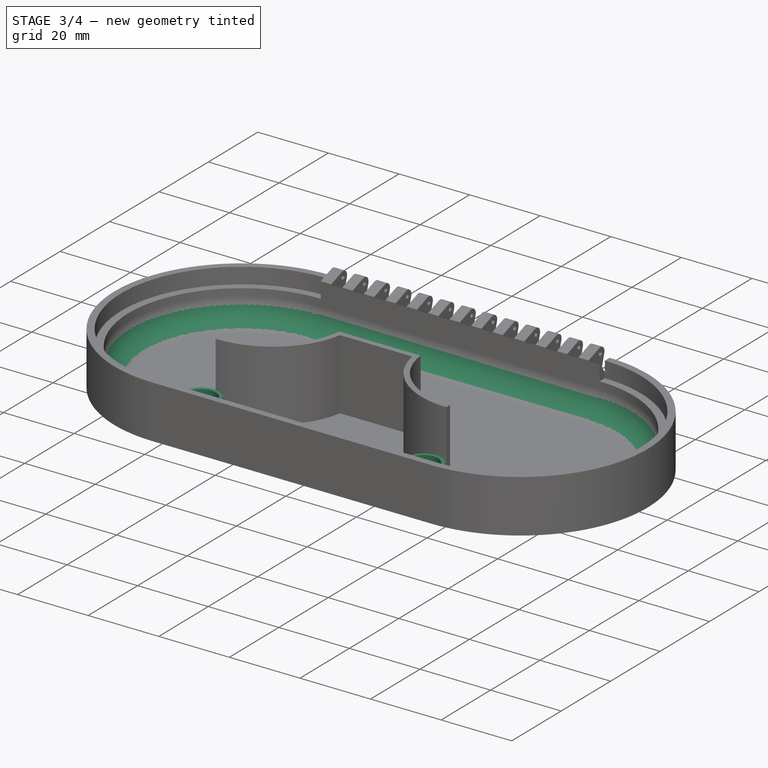
[diagram: stage 3 of 4 — iso view after this stage's code; geometry added in this stage tinted green]
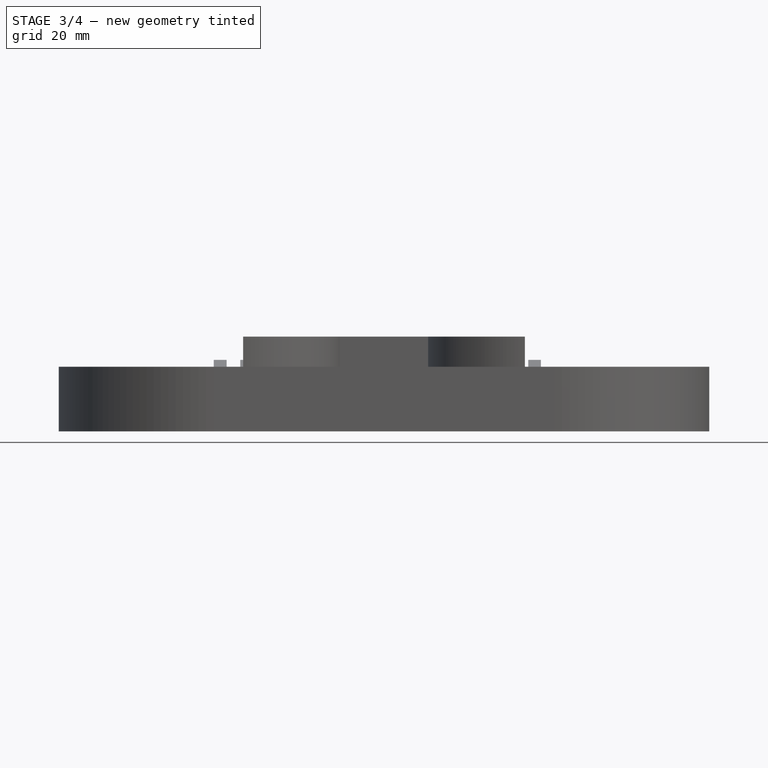
[diagram: stage 3 of 4 — front view after this stage's code; geometry added in this stage tinted green]
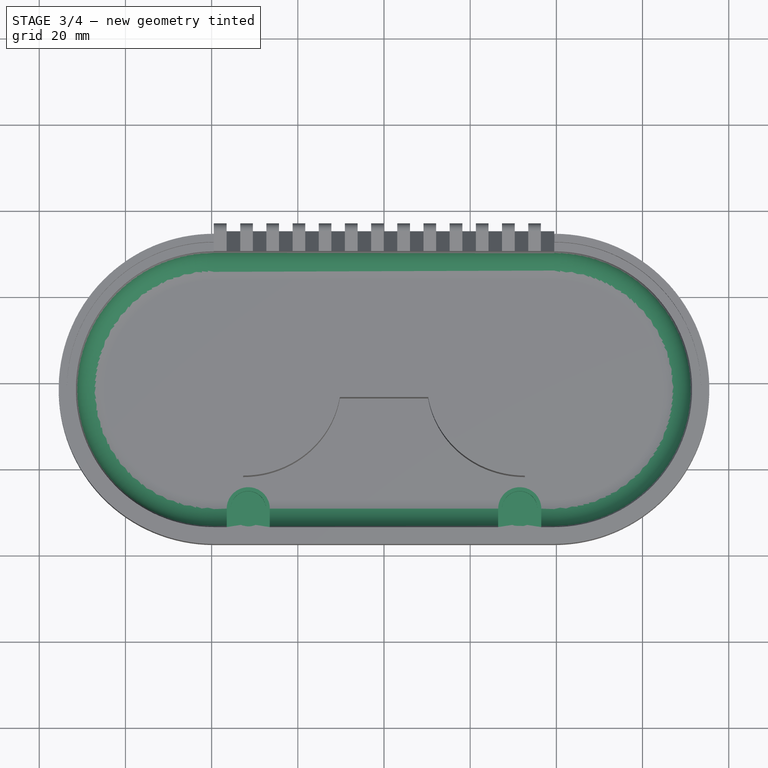
[diagram: stage 3 of 4 — top view after this stage's code; geometry added in this stage tinted green]
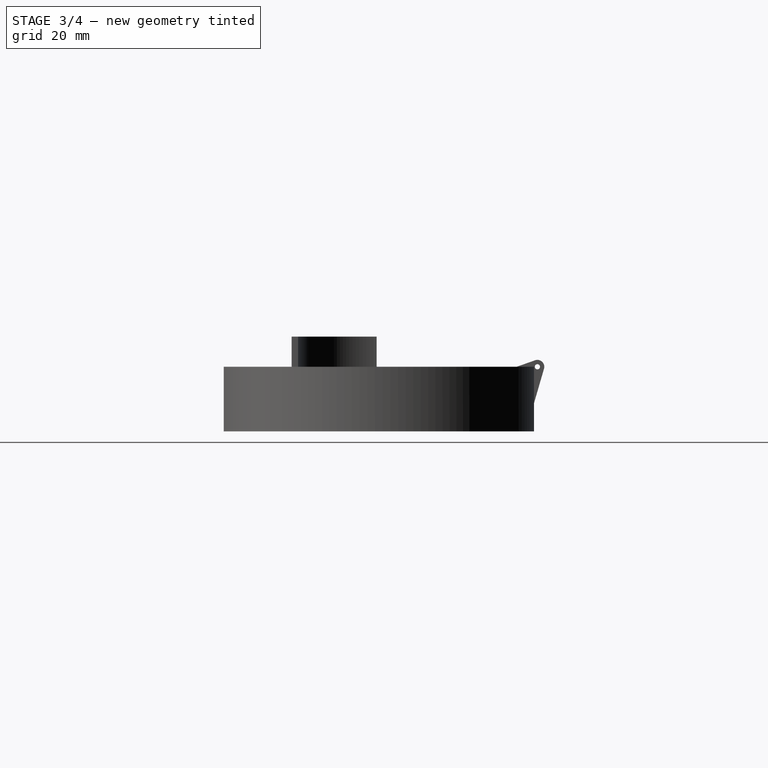
[diagram: stage 3 of 4 — right view after this stage's code; geometry added in this stage tinted green]
FEATURE [Sketcher::SketchObject] Sketch008
  ArcFitTolerance = 1e-06
  AttachmentOffset = pos=(0,0,-0.1) rot=(0,0,1;0rad)
  AttachmentSupport = -> [Pocket001]
  ExternalGeometry = -> [Sketch003]
  ExternalTypes = [0]
  FullyConstrained = true
  MakeInternals = false
  MapMode = 5
  Placement = pos=(0,0,-11.6) rot=(0,0,1;0rad)
  sketch-geometry (6):
    g0: LineSegment StartX=-36.5 StartY=-37.5 StartZ=0 EndX=-36.5 EndY=-33.5 EndZ=0
    g1: LineSegment StartX=-36.5 StartY=-33.5 StartZ=0 EndX=-36.5 EndY=-29.25 EndZ=0
    g2: LineSegment StartX=-26.5 StartY=-37.5 StartZ=0 EndX=-26.5 EndY=-29.25 EndZ=0
    g3: ArcOfCircle CenterX=-31.5 CenterY=-29.25 CenterZ=0 NormalX=0 NormalY=0 NormalZ=1 AngleXU=0 Radius=5 StartAngle=1e-16 EndAngle=3.14159
    g4: LineSegment StartX=-36.5 StartY=-37.5 StartZ=0 EndX=-26.5 EndY=-37.5 EndZ=0
    g5: Circle [constr] CenterX=-31.5 CenterY=-29.25 CenterZ=0 NormalX=0 NormalY=0 NormalZ=1 AngleXU=0 Radius=4.25
  constraints (18):
    c: PointOnObject(g0,g-3)
    c: PointOnObject(g0,g-4)
    c: Vertical(g0)
    c: Coincident(g1,g0)
    c: Vertical(g1)
    c: PointOnObject(g2,g-3)
    c: Vertical(g2)
    c: Horizontal(g1,g2)
    c: Coincident(g3,g1)
    c: Coincident(g3,g2)
    c: Horizontal(g1,g3)
    c: Distance(g-4,g1) = 3
    c: Coincident(g4,g0)
    c: Coincident(g4,g2)
    c: Distance(g2,g1) = 10
    c: Coincident(g5,g3)
    c: Diameter(g5) = 8.5
    c: Tangent(g5,g-4)
FEATURE [PartDesign::Pad] Pad004  label="Magnet post #1"
  BaseFeature = -> Pocket001
  Direction = (0,0,1)
  Length = 10
  Length2 = 10
  Profile = -> Sketch008
  ReferenceAxis = -> Sketch008 [N_Axis]
  Refine = true
  Suppressed = false
  Type = 3
  UpToFace = -> Pocket001 [Face5]
FEATURE [PartDesign::Mirrored] Mirrored  label="Magnet post #2"
  BaseFeature = -> Pad004
  MirrorPlane = -> Sketch008 [V_Axis]
  Originals = -> [Pad004]
  Refine = true
  Suppressed = false
  TransformMode = 0
FEATURE [Sketcher::SketchObject] Sketch009
  ArcFitTolerance = 1e-06
  AttachmentSupport = -> [Mirrored]
  ExternalGeometry = -> [Mirrored]
  ExternalTypes = [0]
  FullyConstrained = true
  MakeInternals = false
  MapMode = 5
  Placement = pos=(0,0,-11.6) rot=(0,0,1;0rad)
  sketch-geometry (2):
    g0: Circle CenterX=-31.5 CenterY=-29.25 CenterZ=0 NormalX=0 NormalY=0 NormalZ=1 AngleXU=0 Radius=4.1
    g1: Circle CenterX=31.5 CenterY=-29.25 CenterZ=0 NormalX=0 NormalY=0 NormalZ=1 AngleXU=0 Radius=4.1
  constraints (4):
    c: Diameter(g0) = 8.2
    c: Equal(g0,g1)
    c: Symmetric(g0,g1,g-2)
    c: Coincident(g0,g-3)
FEATURE [PartDesign::Pocket] Pocket003  label="8x3 neodymium magnet holders"
  BaseFeature = -> Mirrored
  Direction = (0,0,-1)
  Length = 3.2
  Length2 = 5
  Profile = -> Sketch009
  ReferenceAxis = -> Sketch009 [N_Axis]
  Suppressed = false
  Type = 0
FEATURE [Sketcher::SketchObject] Sketch010
  ArcFitTolerance = 1e-06
  AttachmentSupport = -> [YZ_Plane]
  ExternalGeometry = -> [Sketch003]
  ExternalTypes = [0]
  FullyConstrained = true
  MakeInternals = false
  MapMode = 5
  Placement = pos=(0,0,0) rot=(0.57735,0.57735,0.57735;2.0944rad)
  sketch-geometry (3):
    g0: LineSegment StartX=-33.5 StartY=-13.5 StartZ=0 EndX=-33.5 EndY=-20 EndZ=0
    g1: LineSegment StartX=-33.5 StartY=-20 StartZ=0 EndX=-27 EndY=-20 EndZ=0
    g2: ArcOfCircle CenterX=-27 CenterY=-13.5 CenterZ=0 NormalX=0 NormalY=0 NormalZ=1 AngleXU=0 Radius=6.5 StartAngle=3.14159 EndAngle=4.71239
  constraints (9):
    c: Coincident(g0,g-3)
    c: Coincident(g0,g1)
    c: Horizontal(g1)
    c: Vertical(g0)
    c: Equal(g0,g1)
    c: DistanceY(g0,g0) = 6.5
    c: Vertical(g2,g1)
    c: Coincident(g2,g1)
    c: Coincident(g2,g0)
FEATURE [PartDesign::AdditivePipe] AdditivePipe001  label="Inner case rounding"
  AuxilleryCurvelinear = true
  AuxillerySpineTangent = false
  BaseFeature = -> Pocket003
  Binormal = (0,0,0)
  Mode = 0
  Profile = -> Sketch010
  Spine = -> Sketch003 [Edge4,Edge1,Edge2,Edge3]
  SpineTangent = false
  Suppressed = false
  Transformation = 0
  Transition = 0
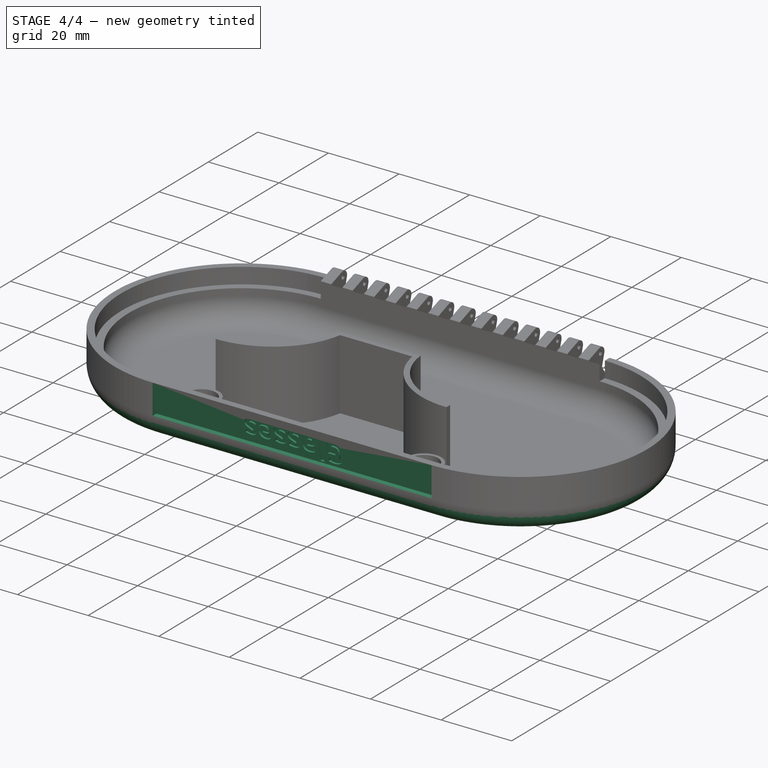
[diagram: stage 4 of 4 — iso view after this stage's code; geometry added in this stage tinted green]
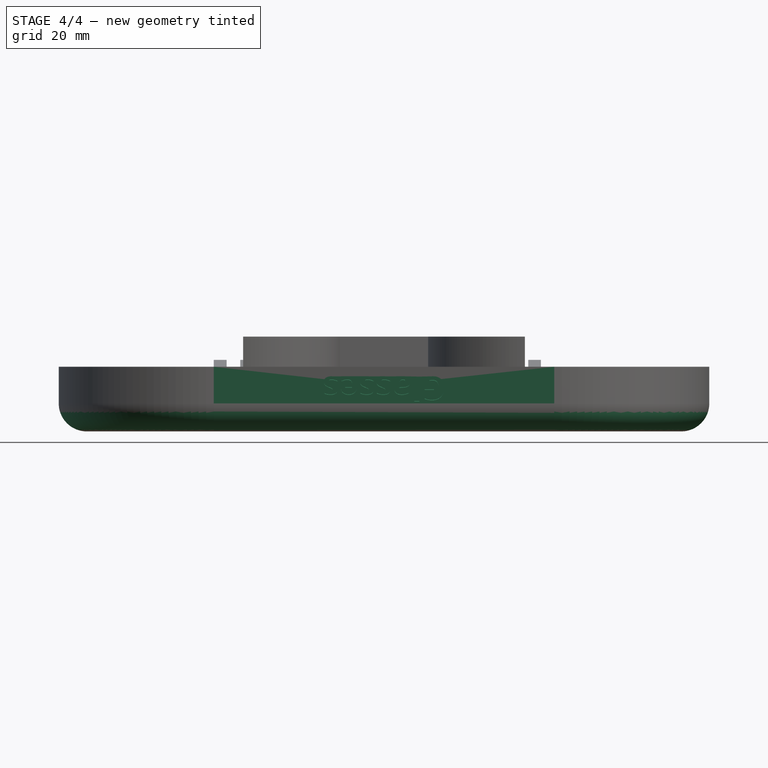
[diagram: stage 4 of 4 — front view after this stage's code; geometry added in this stage tinted green]
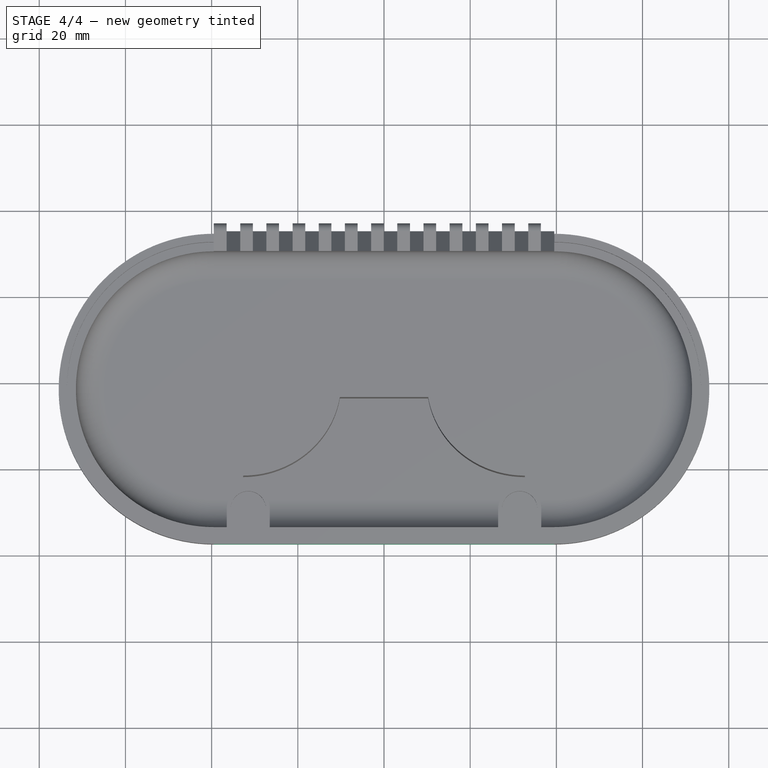
[diagram: stage 4 of 4 — top view after this stage's code; geometry added in this stage tinted green]
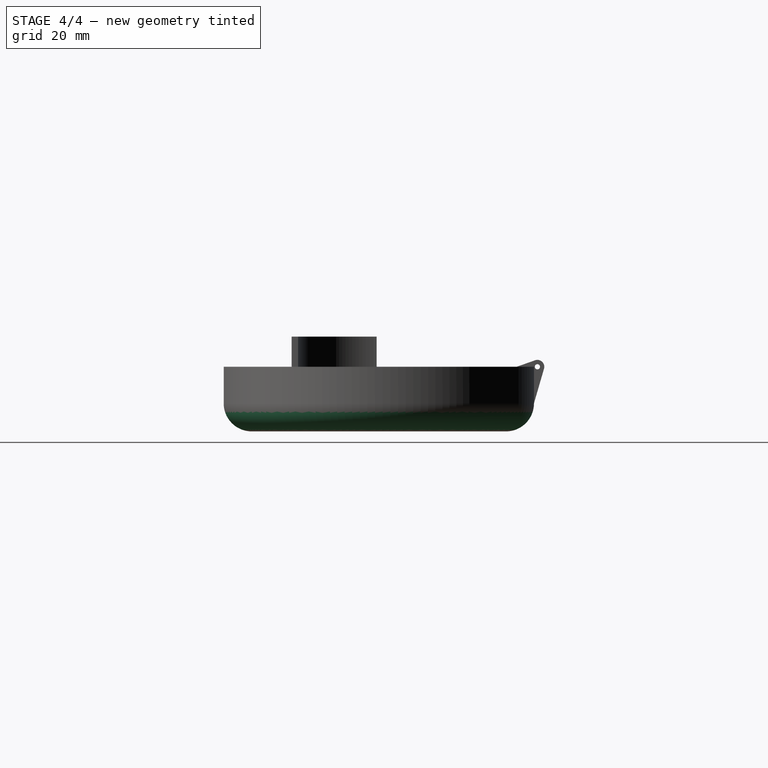
[diagram: stage 4 of 4 — right view after this stage's code; geometry added in this stage tinted green]
FEATURE [Sketcher::SketchObject] Sketch011
  ArcFitTolerance = 1e-06
  AttachmentSupport = -> [YZ_Plane]
  ExternalGeometry = -> [AdditivePipe001]
  ExternalTypes = [0]
  FullyConstrained = true
  MakeInternals = false
  MapMode = 5
  Placement = pos=(0,0,0) rot=(0.57735,0.57735,0.57735;2.0944rad)
  sketch-geometry (3):
    g0: LineSegment StartX=-37.5 StartY=-15.5 StartZ=0 EndX=-37.5 EndY=-22 EndZ=0
    g1: LineSegment StartX=-37.5 StartY=-22 StartZ=0 EndX=-31 EndY=-22 EndZ=0
    g2: ArcOfCircle CenterX=-31 CenterY=-15.5 CenterZ=0 NormalX=0 NormalY=0 NormalZ=1 AngleXU=0 Radius=6.5 StartAngle=3.14159 EndAngle=4.71239
  constraints (9):
    c: Vertical(g0)
    c: Coincident(g0,g1)
    c: Horizontal(g1)
    c: Coincident(g1,g2)
    c: Coincident(g2,g0)
    c: Vertical(g1,g2)
    c: DistanceY(g0,g0) = 6.5
    c: Equal(g0,g1)
    c: Coincident(g-3,g0)
FEATURE [PartDesign::SubtractivePipe] SubtractivePipe  label="Outer case rounding"
  AuxilleryCurvelinear = true
  AuxillerySpineTangent = false
  BaseFeature = -> AdditivePipe001
  Binormal = (0,0,0)
  Mode = 0
  Profile = -> Sketch011
  Spine = -> AdditivePipe001 [Edge349,Edge324,Edge348,Edge343]
  SpineTangent = false
  Suppressed = false
  Transformation = 0
  Transition = 0
FEATURE [App::Point] Origin001  label="Origin"
  Role = Origin
FEATURE [Sketcher::SketchObject] Sketch012
  ArcFitTolerance = 1e-06
  AttachmentSupport = -> [YZ_Plane]
  ExternalGeometry = -> [Sketch011,Sketch007]
  ExternalTypes = [0,0]
  FullyConstrained = true
  MakeInternals = false
  MapMode = 5
  Placement = pos=(0,0,0) rot=(0.57735,0.57735,0.57735;2.0944rad)
  sketch-geometry (3):
    g0: LineSegment StartX=-37.5 StartY=-15.5 StartZ=0 EndX=-36 EndY=-15.5 EndZ=0
    g1: LineSegment StartX=-36 StartY=-15.5 StartZ=0 EndX=-37.5 EndY=-7 EndZ=0
    g2: LineSegment StartX=-37.5 StartY=-7 StartZ=0 EndX=-37.5 EndY=-15.5 EndZ=0
  constraints (8):
    c: Coincident(g-3,g0)
    c: Horizontal(g0)
    c: Coincident(g0,g1)
    c: Coincident(g1,g2)
    c: Coincident(g2,g0)
    c: Vertical(g2)
    c: Horizontal(g1,g-4)
    c: DistanceX(g0,g0) = 1.5
FEATURE [PartDesign::SubtractivePipe] SubtractivePipe001  label="Thumb notch"
  AuxilleryCurvelinear = true
  AuxillerySpineTangent = false
  BaseFeature = -> SubtractivePipe
  Binormal = (0,0,0)
  Mode = 0
  Profile = -> Sketch012
  Refine = true
  Spine = -> Sketch003 [Edge8]
  SpineTangent = false
  Suppressed = false
  Transformation = 0
  Transition = 0
FEATURE [Part::Part2DObjectPython] ShapeString  # Draft 2D object (typed FeaturePython)
  AttachmentOffset = pos=(0,-2.7,0) rot=(0,0,1;3.14159rad)
  AttachmentSupport = -> [SubtractivePipe001]
  FontFile = <path>
  Fuse = false
  Justification = 7
  JustificationReference = 0
  KeepLeftMargin = false
  MakeFace = true
  MapMode = 5
  ObliqueAngle = 0
  Placement = pos=(5.338e-13,-37.0962,-9.28811) rot=(0,-0.766089,0.642734;3.14159rad)
  ScaleToSize = true
  Size = 5.5
  String = Glasses
  Tracking = 0
FEATURE [PartDesign::Pocket] Pocket004  label="Front marking"
  BaseFeature = -> SubtractivePipe001
  Direction = (0,0.98,0.17)
  Length = 0.5
  Length2 = 5
  Profile = -> ShapeString
  ReferenceAxis = -> ShapeString [N_Axis]
  Refine = true
  Suppressed = false
  Type = 0
FEATURE [PartDesign::Body] Body
  AllowCompound = false
  Group = -> [Sketch,Sketch001,Pad,Sketch003,Pad002,Pad003,Sketch004,AdditivePipe,Sketch005,DatumPlane,Sketch006,Pocket,Sketch007,Pocket001,Sketch008,Pad004,Mirrored,Sketch009,Pocket003,Sketch010,AdditivePipe001,Sketch011,SubtractivePipe,Sketch012,SubtractivePipe001,ShapeString,Pocket004]
  Origin = -> Origin
  Tip = -> Pocket004
note: 1 file-system path scrubbed to <path> (originals preserved in the JSON sidecar)
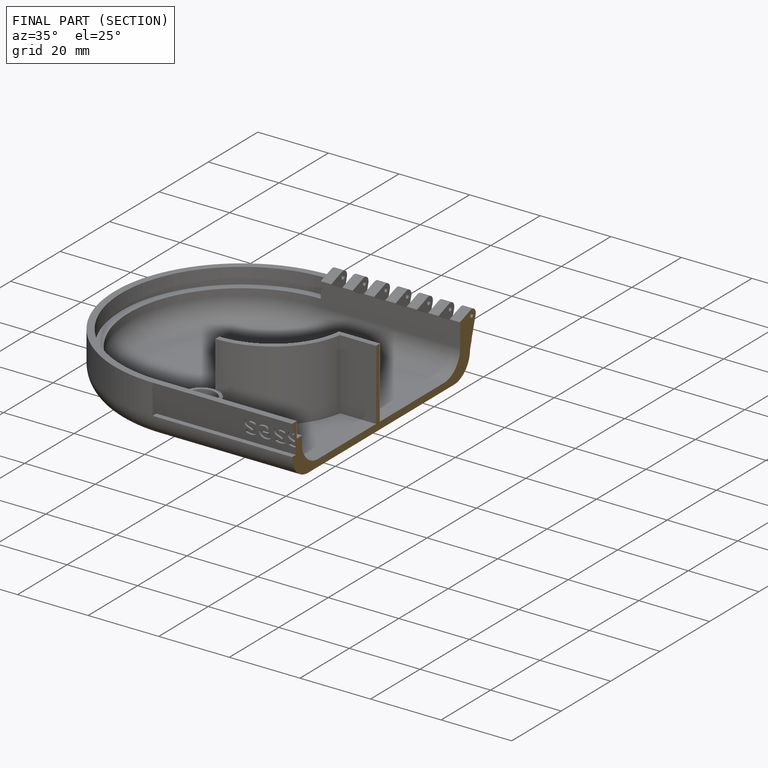
[diagram: finished part — half-section view (interior)]
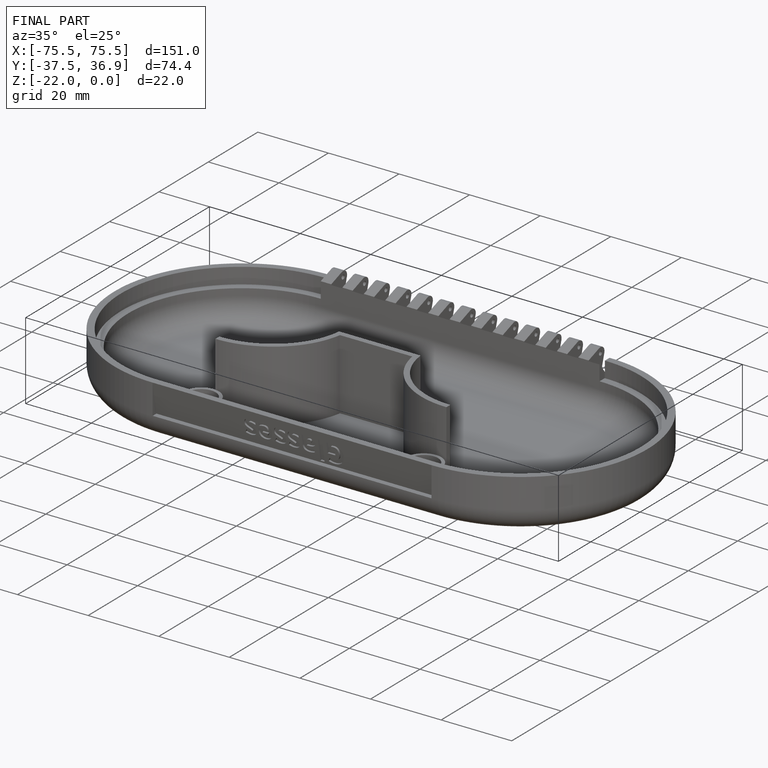
[diagram: finished part — iso view with bounding-box wireframe]
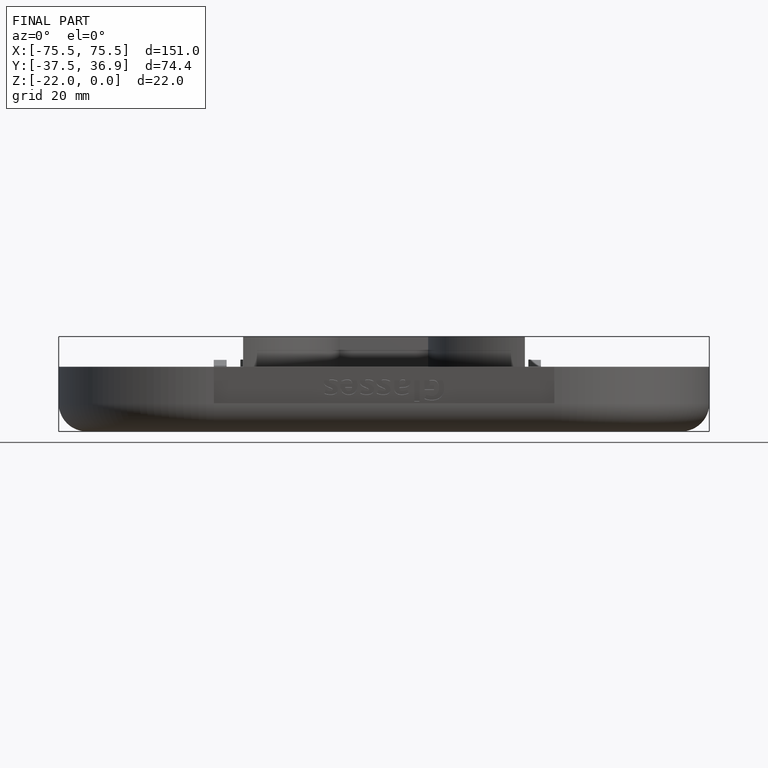
[diagram: finished part — front view with bounding-box wireframe]
